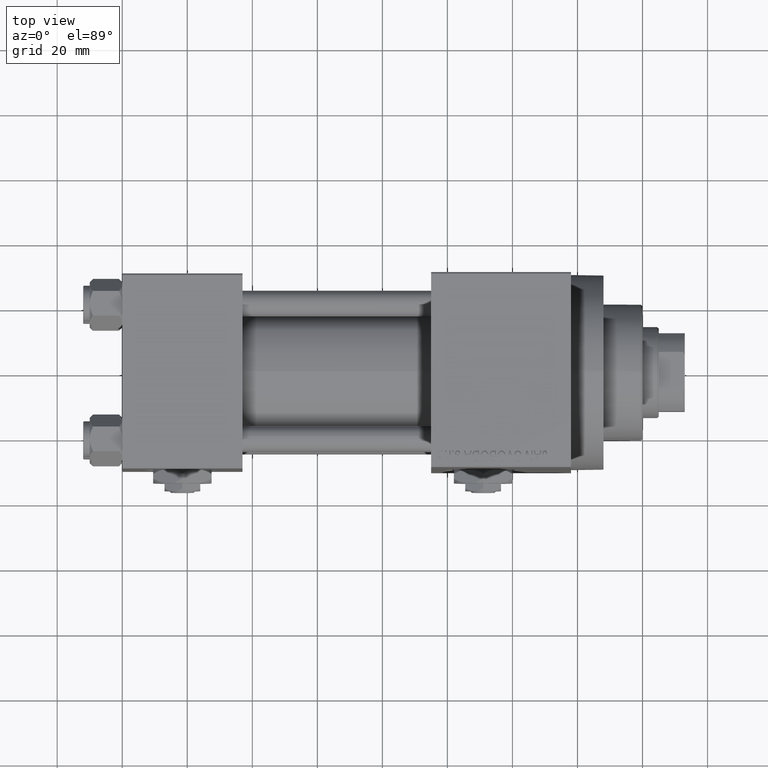
[diagram: clean part render]
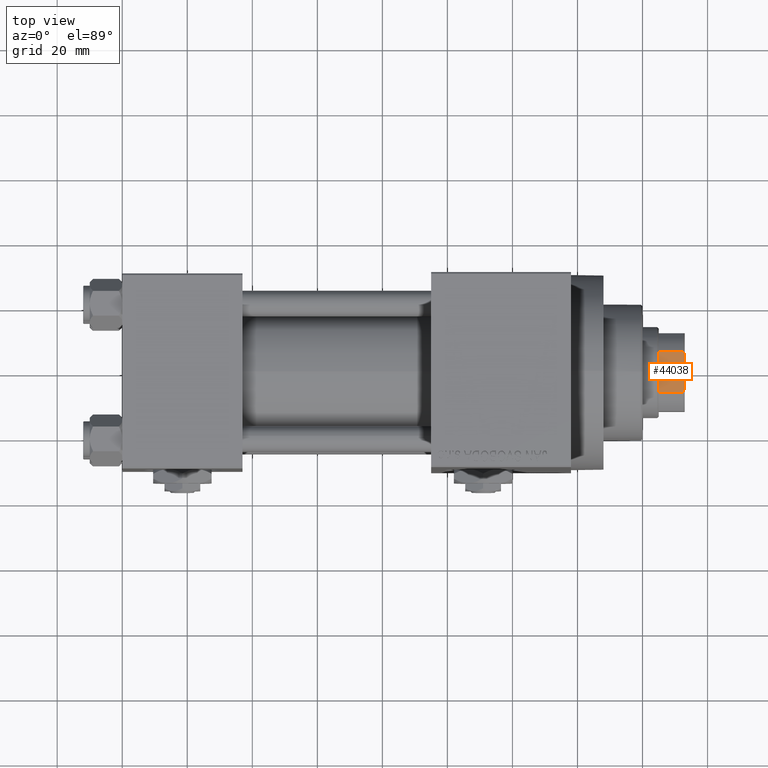
[diagram: same view with one face highlighted and labeled with its STEP entity id]
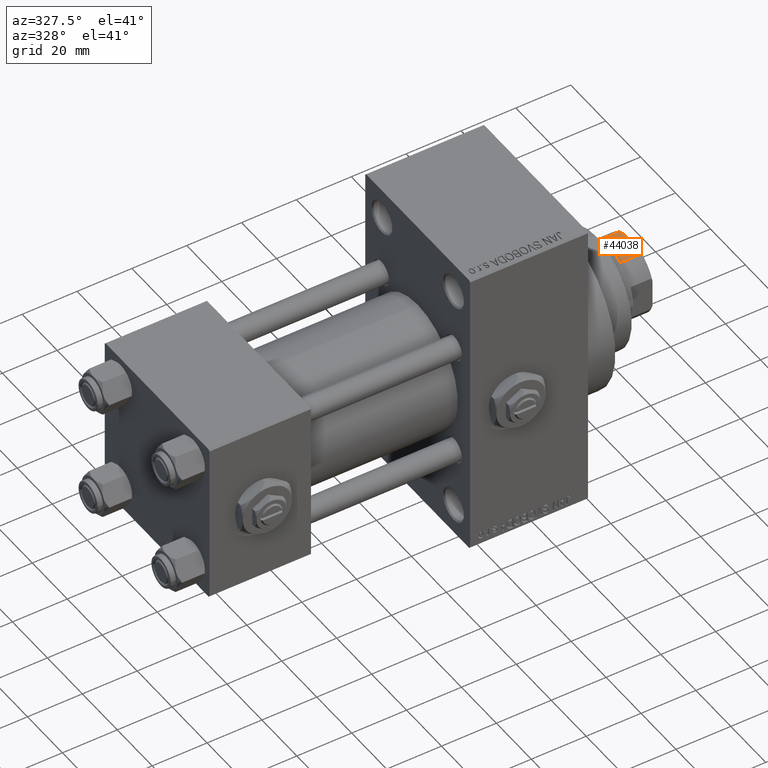
[diagram: same view with one face highlighted and labeled with its STEP entity id]
A machine part, top view. The second image highlights one B-rep face of the part: STEP entity #44038.
A second angle (auxiliary view) of the same face is appended — the face is thin or edge-on in the first view.
In plain terms, the highlighted planar face has unit normal (0, 0, -1).
Its self-contained STEP definition (entity closure, byte-faithful):
#1395 = CARTESIAN_POINT ( 'NONE',  ( -11.99999999999999822, -12.00000000000000355, 136.0000000000000000 ) ) ;
#1941 = CARTESIAN_POINT ( 'NONE',  ( -11.99999999999999822, -12.00000000000000355, 136.0000000000000000 ) ) ;
#2761 = CARTESIAN_POINT ( 'NONE',  ( -5.000000000000031086, -12.00000000000000355, 136.0000000000000000 ) ) ;
#4207 = DIRECTION ( 'NONE',  ( -0.000000000000000000, -0.000000000000000000, 1.000000000000000000 ) ) ;
#5740 = CARTESIAN_POINT ( 'NONE',  ( -6.184658438426496652, -11.99999999999999645, 128.0000000000000853 ) ) ;
#8162 = CARTESIAN_POINT ( 'NONE',  ( -11.99999999999999822, -12.00000000000000355, 128.0000000000000000 ) ) ;
#9468 = EDGE_LOOP ( 'NONE', ( #39373, #24281, #32214, #44502, #34081, #34483 ) ) ;
#10485 = EDGE_CURVE ( 'NONE', #25916, #28206, #48194, .T. ) ;
#10737 = VECTOR ( 'NONE', #20954, 1000.000000000000000 ) ;
#11219 = DIRECTION ( 'NONE',  ( -0.000000000000000000, -0.000000000000000000, 1.000000000000000000 ) ) ;
#13231 = PLANE ( 'NONE',  #20162 ) ;
#14696 = VERTEX_POINT ( 'NONE', #46222 ) ;
#15715 = CARTESIAN_POINT ( 'NONE',  ( -5.400255697127810173, -12.00000000000000355, 135.8460555011047006 ) ) ;
#16153 = CARTESIAN_POINT ( 'NONE',  ( 5.400255697127826160, -12.00000000000000355, 135.8460555011047006 ) ) ;
#17246 = CARTESIAN_POINT ( 'NONE',  ( -6.184658438426496652, -11.99999999999999645, 135.5000000000000284 ) ) ;
#17483 = DIRECTION ( 'NONE',  ( 0.000000000000000000, -0.000000000000000000, 1.000000000000000000 ) ) ;
#17485 = EDGE_CURVE ( 'NONE', #20368, #14696, #45317, .T. ) ;
#18481 = CARTESIAN_POINT ( 'NONE',  ( 6.184658438426496652, -11.99999999999999645, -0.001000000000001000089 ) ) ;
#19920 = CARTESIAN_POINT ( 'NONE',  ( 5.000000000000053291, -12.00000000000000355, 136.0000000000000000 ) ) ;
#20162 = AXIS2_PLACEMENT_3D ( 'NONE', #1941, #31767, #17483 ) ;
#20368 = VERTEX_POINT ( 'NONE', #33936 ) ;
#20954 = DIRECTION ( 'NONE',  ( 1.000000000000000000, 0.000000000000000000, 0.000000000000000000 ) ) ;
#23151 = EDGE_CURVE ( 'NONE', #25916, #35319, #37411, .T. ) ;
#24281 = ORIENTED_EDGE ( 'NONE', *, *, #38330, .T. ) ;
#25916 = VERTEX_POINT ( 'NONE', #2761 ) ;
#26970 = LINE ( 'NONE', #8162, #40529 ) ;
#27027 = CARTESIAN_POINT ( 'NONE',  ( -6.184658438426496652, -11.99999999999999645, -0.001000000000001000089 ) ) ;
#27430 = CARTESIAN_POINT ( 'NONE',  ( 6.184658438426496652, -11.99999999999999645, 135.5000000000000284 ) ) ;
#27469 = EDGE_CURVE ( 'NONE', #33067, #20368, #26970, .T. ) ;
#28206 = VERTEX_POINT ( 'NONE', #17246 ) ;
#28763 = FACE_OUTER_BOUND ( 'NONE', #9468, .T. ) ;
#29416 = VECTOR ( 'NONE', #4207, 1000.000000000000000 ) ;
#30478 = EDGE_CURVE ( 'NONE', #33067, #28206, #46089, .T. ) ;
#31767 = DIRECTION ( 'NONE',  ( 0.000000000000000000, 1.000000000000000000, 0.000000000000000000 ) ) ;
#32214 = ORIENTED_EDGE ( 'NONE', *, *, #23151, .F. ) ;
#33067 = VERTEX_POINT ( 'NONE', #5740 ) ;
#33206 = CARTESIAN_POINT ( 'NONE',  ( 5.000000000000053291, -12.00000000000000355, 136.0000000000000000 ) ) ;
#33936 = CARTESIAN_POINT ( 'NONE',  ( 6.184658438426496652, -11.99999999999999645, 128.0000000000000853 ) ) ;
#34081 = ORIENTED_EDGE ( 'NONE', *, *, #30478, .F. ) ;
#34483 = ORIENTED_EDGE ( 'NONE', *, *, #27469, .T. ) ;
#35319 = VERTEX_POINT ( 'NONE', #33206 ) ;
#37411 = LINE ( 'NONE', #1395, #10737 ) ;
#37788 = CARTESIAN_POINT ( 'NONE',  ( -5.794808544282252782, -12.00000000000000355, 135.6785991435214385 ) ) ;
#38330 = EDGE_CURVE ( 'NONE', #14696, #35319, #45706, .T. ) ;
#39373 = ORIENTED_EDGE ( 'NONE', *, *, #17485, .T. ) ;
#40529 = VECTOR ( 'NONE', #42038, 1000.000000000000000 ) ;
#42038 = DIRECTION ( 'NONE',  ( 1.000000000000000000, 0.000000000000000000, 0.000000000000000000 ) ) ;
#42057 = CARTESIAN_POINT ( 'NONE',  ( -5.000000000000031086, -12.00000000000000355, 136.0000000000000000 ) ) ;
#43940 = VECTOR ( 'NONE', #11219, 1000.000000000000000 ) ;
#44038 = ADVANCED_FACE ( 'NONE', ( #28763 ), #13231, .F. ) ;
#44502 = ORIENTED_EDGE ( 'NONE', *, *, #10485, .T. ) ;
#45317 = LINE ( 'NONE', #18481, #43940 ) ;
#45706 = B_SPLINE_CURVE_WITH_KNOTS ( 'NONE', 3,
 ( #27430, #49533, #16153, #19920 ),
 .UNSPECIFIED., .F., .F.,
 ( 4, 4 ),
 ( 0.000000000000000000, 0.001285852097146072308 ),
 .UNSPECIFIED. ) ;
#46089 = LINE ( 'NONE', #27027, #29416 ) ;
#46222 = CARTESIAN_POINT ( 'NONE',  ( 6.184658438426496652, -11.99999999999999645, 135.5000000000000284 ) ) ;
#48194 = B_SPLINE_CURVE_WITH_KNOTS ( 'NONE', 3,
 ( #42057, #15715, #37788, #49581 ),
 .UNSPECIFIED., .F., .F.,
 ( 4, 4 ),
 ( 0.000000000000000000, 0.001285852097146092258 ),
 .UNSPECIFIED. ) ;
#49533 = CARTESIAN_POINT ( 'NONE',  ( 5.794808544282259888, -11.99999999999999645, 135.6785991435214385 ) ) ;
#49581 = CARTESIAN_POINT ( 'NONE',  ( -6.184658438426496652, -11.99999999999999645, 135.5000000000000284 ) ) ;